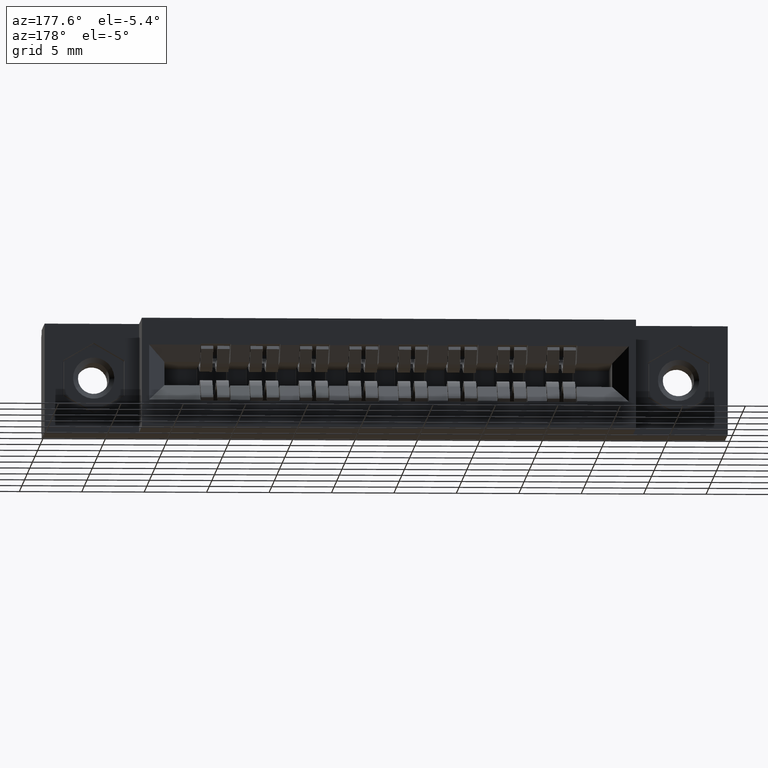
[diagram: clean part render]
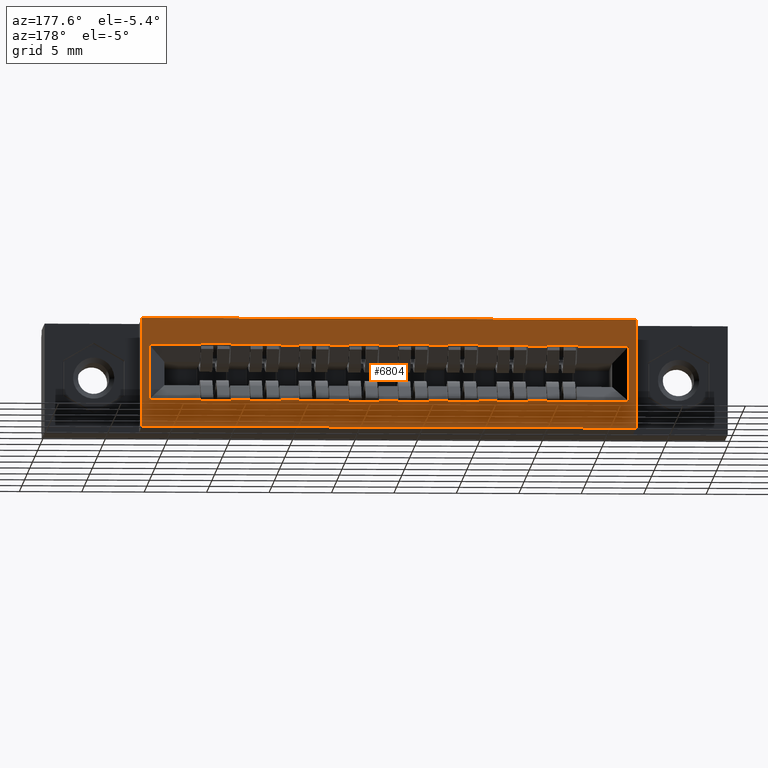
[diagram: same view with one face highlighted and labeled with its STEP entity id]
A machine part, auxiliary view. The second image highlights one B-rep face of the part: STEP entity #6804.
In plain terms, the highlighted planar face has unit normal (0, -1, 0).
Its self-contained STEP definition (entity closure, byte-faithful):
#63 = CARTESIAN_POINT ( 'NONE',  ( 0.8904999999999999583, 0.4600000000000000200, -0.2585000000000003406 ) ) ;
#96 = VECTOR ( 'NONE', #1194, 39.37007874015748143 ) ;
#123 = CARTESIAN_POINT ( 'NONE',  ( 1.263499999999999845, 0.4600000000000000200, -0.08150000000000034994 ) ) ;
#148 = CARTESIAN_POINT ( 'NONE',  ( -3.125808721504124974E-18, 0.4600000000000000200, -0.08450000000000008893 ) ) ;
#190 = EDGE_CURVE ( 'NONE', #6291, #11977, #12354, .T. ) ;
#202 = LINE ( 'NONE', #3156, #9696 ) ;
#214 = DIRECTION ( 'NONE',  ( 1.000000000000000000, -0.0000000000000000000, -0.0000000000000000000 ) ) ;
#221 = CARTESIAN_POINT ( 'NONE',  ( 1.202499999999999902, 0.4600000000000000200, -0.2585000000000003406 ) ) ;
#243 = VERTEX_POINT ( 'NONE', #6377 ) ;
#244 = LINE ( 'NONE', #5393, #2859 ) ;
#282 = LINE ( 'NONE', #5239, #1736 ) ;
#348 = EDGE_CURVE ( 'NONE', #5929, #9593, #12277, .T. ) ;
#391 = CARTESIAN_POINT ( 'NONE',  ( 0.0000000000000000000, 0.4600000000000000200, -0.2585000000000006182 ) ) ;
#393 = LINE ( 'NONE', #10589, #6662 ) ;
#427 = VECTOR ( 'NONE', #968, 39.37007874015748143 ) ;
#471 = CARTESIAN_POINT ( 'NONE',  ( 0.3209999999999997300, 0.4600000000000000200, -0.2585000000000006182 ) ) ;
#549 = LINE ( 'NONE', #8990, #3298 ) ;
#556 = VECTOR ( 'NONE', #12938, 39.37007874015748143 ) ;
#602 = EDGE_CURVE ( 'NONE', #5455, #2452, #10052, .T. ) ;
#619 = VERTEX_POINT ( 'NONE', #3883 ) ;
#638 = ORIENTED_EDGE ( 'NONE', *, *, #10325, .T. ) ;
#660 = CARTESIAN_POINT ( 'NONE',  ( 0.6395000000000000684, 0.4600000000000000200, -0.2585000000000003406 ) ) ;
#661 = VECTOR ( 'NONE', #11314, 39.37007874015748143 ) ;
#687 = EDGE_CURVE ( 'NONE', #9593, #4639, #9928, .T. ) ;
#690 = CARTESIAN_POINT ( 'NONE',  ( 0.7345000000000000417, 0.4600000000000000200, -0.2615000000000003433 ) ) ;
#735 = CARTESIAN_POINT ( 'NONE',  ( 1.419499999999999984, 0.4600000000000000200, -0.08150000000000034994 ) ) ;
#750 = ORIENTED_EDGE ( 'NONE', *, *, #11409, .F. ) ;
#809 = EDGE_LOOP ( 'NONE', ( #11569, #8749, #8347, #11523, #2229, #8973, #9359, #9998, #5409, #12439, #3911, #4657, #1779, #12963, #2264, #3701, #750, #1203, #9809, #13053, #1272, #8388, #9252, #1058, #8412, #10083, #8614, #6664, #12478, #4857, #9215, #9181, #1033, #1877, #5267, #4523, #1987, #13030, #5155, #13001, #4588, #3650, #2720, #6105, #6681, #2728, #11214, #8032, #5540, #833, #638, #7549, #8020, #10721, #10073, #2084, #12647, #12523, #3098, #1995, #3893, #7704, #1223, #8735, #958, #6949, #12126, #6767 ) ) ;
#817 = LINE ( 'NONE', #3767, #427 ) ;
#822 = VERTEX_POINT ( 'NONE', #5887 ) ;
#833 = ORIENTED_EDGE ( 'NONE', *, *, #8587, .T. ) ;
#843 = EDGE_CURVE ( 'NONE', #10914, #7667, #3868, .T. ) ;
#866 = VECTOR ( 'NONE', #7114, 39.37007874015748143 ) ;
#872 = EDGE_CURVE ( 'NONE', #11543, #7248, #8023, .T. ) ;
#875 = CARTESIAN_POINT ( 'NONE',  ( 0.0000000000000000000, 0.4600000000000000200, -0.3430000000000000271 ) ) ;
#914 = EDGE_CURVE ( 'NONE', #11068, #243, #5141, .T. ) ;
#921 = LINE ( 'NONE', #9157, #7046 ) ;
#956 = VERTEX_POINT ( 'NONE', #6142 ) ;
#958 = ORIENTED_EDGE ( 'NONE', *, *, #6737, .F. ) ;
#968 = DIRECTION ( 'NONE',  ( 0.0000000000000000000, 0.0000000000000000000, 1.000000000000000000 ) ) ;
#1023 = EDGE_LOOP ( 'NONE', ( #12810, #10418, #9862, #3476 ) ) ;
#1026 = CARTESIAN_POINT ( 'NONE',  ( 1.514499999999999957, 0.4600000000000000200, -0.2585000000000003406 ) ) ;
#1033 = ORIENTED_EDGE ( 'NONE', *, *, #4630, .F. ) ;
#1056 = VERTEX_POINT ( 'NONE', #5472 ) ;
#1058 = ORIENTED_EDGE ( 'NONE', *, *, #4671, .F. ) ;
#1096 = CARTESIAN_POINT ( 'NONE',  ( 1.263499999999999845, 0.4600000000000000200, -0.2615000000000003433 ) ) ;
#1161 = EDGE_CURVE ( 'NONE', #7675, #7248, #4608, .T. ) ;
#1164 = DIRECTION ( 'NONE',  ( 0.0000000000000000000, 0.0000000000000000000, 1.000000000000000000 ) ) ;
#1194 = DIRECTION ( 'NONE',  ( 1.000000000000000000, 0.0000000000000000000, 0.0000000000000000000 ) ) ;
#1203 = ORIENTED_EDGE ( 'NONE', *, *, #13099, .T. ) ;
#1208 = CARTESIAN_POINT ( 'NONE',  ( 1.575500000000000123, 0.4600000000000000200, -0.08150000000000034994 ) ) ;
#1223 = ORIENTED_EDGE ( 'NONE', *, *, #2963, .T. ) ;
#1226 = CARTESIAN_POINT ( 'NONE',  ( 0.7954999999999999849, 0.4600000000000000200, -0.2585000000000003406 ) ) ;
#1272 = ORIENTED_EDGE ( 'NONE', *, *, #3557, .F. ) ;
#1429 = DIRECTION ( 'NONE',  ( -0.0000000000000000000, -0.0000000000000000000, 1.000000000000000000 ) ) ;
#1446 = CARTESIAN_POINT ( 'NONE',  ( 1.856000000000000094, 0.4600000000000000200, -0.3429999999999996385 ) ) ;
#1457 = VERTEX_POINT ( 'NONE', #2941 ) ;
#1481 = VERTEX_POINT ( 'NONE', #63 ) ;
#1511 = VERTEX_POINT ( 'NONE', #3000 ) ;
#1530 = CARTESIAN_POINT ( 'NONE',  ( -3.125808721504124974E-18, 0.4600000000000000200, -0.08450000000000008893 ) ) ;
#1584 = DIRECTION ( 'NONE',  ( -0.0000000000000000000, -0.0000000000000000000, 1.000000000000000000 ) ) ;
#1682 = DIRECTION ( 'NONE',  ( -1.000000000000000000, -0.0000000000000000000, -0.0000000000000000000 ) ) ;
#1695 = CARTESIAN_POINT ( 'NONE',  ( -3.125808721504124974E-18, 0.4600000000000000200, -0.08450000000000008893 ) ) ;
#1725 = VERTEX_POINT ( 'NONE', #8824 ) ;
#1736 = VECTOR ( 'NONE', #7308, 39.37007874015748143 ) ;
#1778 = CARTESIAN_POINT ( 'NONE',  ( 0.7345000000000000417, 0.4600000000000000200, -0.08450000000000035261 ) ) ;
#1779 = ORIENTED_EDGE ( 'NONE', *, *, #8707, .F. ) ;
#1877 = ORIENTED_EDGE ( 'NONE', *, *, #5342, .T. ) ;
#1892 = CARTESIAN_POINT ( 'NONE',  ( -3.125808721504124974E-18, 0.4600000000000000200, -0.08450000000000008893 ) ) ;
#1894 = CARTESIAN_POINT ( 'NONE',  ( 0.8904999999999999583, 0.4600000000000000200, -0.2615000000000003433 ) ) ;
#1917 = VERTEX_POINT ( 'NONE', #1918 ) ;
#1918 = CARTESIAN_POINT ( 'NONE',  ( 0.9514999999999999014, 0.4600000000000000200, -0.08150000000000034994 ) ) ;
#1964 = EDGE_CURVE ( 'NONE', #2624, #1725, #5387, .T. ) ;
#1972 = CARTESIAN_POINT ( 'NONE',  ( 1.107499999999999929, 0.4600000000000000200, -0.08450000000000035261 ) ) ;
#1987 = ORIENTED_EDGE ( 'NONE', *, *, #7155, .F. ) ;
#1992 = VECTOR ( 'NONE', #11374, 39.37007874015748143 ) ;
#1995 = ORIENTED_EDGE ( 'NONE', *, *, #6654, .T. ) ;
#2073 = VECTOR ( 'NONE', #7381, 39.37007874015748143 ) ;
#2080 = DIRECTION ( 'NONE',  ( 1.000000000000000000, 0.0000000000000000000, 0.0000000000000000000 ) ) ;
#2084 = ORIENTED_EDGE ( 'NONE', *, *, #5495, .T. ) ;
#2179 = VERTEX_POINT ( 'NONE', #690 ) ;
#2180 = VECTOR ( 'NONE', #11747, 39.37007874015748143 ) ;
#2191 = VECTOR ( 'NONE', #11027, 39.37007874015748143 ) ;
#2194 = VECTOR ( 'NONE', #8520, 39.37007874015748143 ) ;
#2226 = CARTESIAN_POINT ( 'NONE',  ( 1.419499999999999984, 0.4600000000000000200, -0.08450000000000035261 ) ) ;
#2229 = ORIENTED_EDGE ( 'NONE', *, *, #12231, .T. ) ;
#2245 = CARTESIAN_POINT ( 'NONE',  ( 0.0000000000000000000, 0.4600000000000000200, -0.2585000000000006182 ) ) ;
#2264 = ORIENTED_EDGE ( 'NONE', *, *, #3574, .T. ) ;
#2323 = DIRECTION ( 'NONE',  ( 1.000000000000000000, -0.0000000000000000000, -0.0000000000000000000 ) ) ;
#2378 = VERTEX_POINT ( 'NONE', #221 ) ;
#2400 = VERTEX_POINT ( 'NONE', #5179 ) ;
#2403 = EDGE_CURVE ( 'NONE', #1056, #9565, #5444, .T. ) ;
#2410 = CARTESIAN_POINT ( 'NONE',  ( 0.9514999999999999014, 0.4600000000000000200, -0.2585000000000003406 ) ) ;
#2434 = DIRECTION ( 'NONE',  ( 1.000000000000000000, -0.0000000000000000000, -0.0000000000000000000 ) ) ;
#2452 = VERTEX_POINT ( 'NONE', #6308 ) ;
#2476 = VERTEX_POINT ( 'NONE', #1226 ) ;
#2482 = EDGE_CURVE ( 'NONE', #9487, #2179, #3239, .T. ) ;
#2489 = CARTESIAN_POINT ( 'NONE',  ( 1.263499999999999845, 0.4600000000000000200, -0.2585000000000003406 ) ) ;
#2523 = VERTEX_POINT ( 'NONE', #11867 ) ;
#2552 = EDGE_CURVE ( 'NONE', #9299, #12240, #12742, .T. ) ;
#2565 = CARTESIAN_POINT ( 'NONE',  ( -3.125808721504124974E-18, 0.4600000000000000200, -0.08450000000000008893 ) ) ;
#2624 = VERTEX_POINT ( 'NONE', #471 ) ;
#2657 = CARTESIAN_POINT ( 'NONE',  ( 1.419499999999999984, 0.4600000000000000200, -0.2585000000000003406 ) ) ;
#2671 = LINE ( 'NONE', #3593, #10552 ) ;
#2679 = DIRECTION ( 'NONE',  ( -1.000000000000000000, 0.0000000000000000000, -1.209210337138926833E-17 ) ) ;
#2687 = CARTESIAN_POINT ( 'NONE',  ( 1.263499999999999845, 0.4600000000000000200, -0.08450000000000035261 ) ) ;
#2705 = DIRECTION ( 'NONE',  ( -0.0000000000000000000, -0.0000000000000000000, 1.000000000000000000 ) ) ;
#2720 = ORIENTED_EDGE ( 'NONE', *, *, #6983, .T. ) ;
#2728 = ORIENTED_EDGE ( 'NONE', *, *, #2482, .T. ) ;
#2804 = DIRECTION ( 'NONE',  ( 1.000000000000000000, -0.0000000000000000000, -0.0000000000000000000 ) ) ;
#2837 = CARTESIAN_POINT ( 'NONE',  ( 0.7954999999999999849, 0.4600000000000000200, -0.2615000000000003433 ) ) ;
#2859 = VECTOR ( 'NONE', #4261, 39.37007874015748143 ) ;
#2941 = CARTESIAN_POINT ( 'NONE',  ( 1.856000000000000094, 0.4600000000000000200, 0.0000000000000000000 ) ) ;
#2963 = EDGE_CURVE ( 'NONE', #7331, #5942, #4736, .T. ) ;
#2965 = LINE ( 'NONE', #12079, #5420 ) ;
#2971 = LINE ( 'NONE', #7054, #6028 ) ;
#2998 = VECTOR ( 'NONE', #4482, 39.37007874015748143 ) ;
#3000 = CARTESIAN_POINT ( 'NONE',  ( 0.2979999999999999871, 0.4600000000000000200, 0.0000000000000000000 ) ) ;
#3009 = DIRECTION ( 'NONE',  ( 0.0000000000000000000, 0.0000000000000000000, 1.000000000000000000 ) ) ;
#3087 = LINE ( 'NONE', #11247, #4556 ) ;
#3094 = VERTEX_POINT ( 'NONE', #8076 ) ;
#3098 = ORIENTED_EDGE ( 'NONE', *, *, #3727, .T. ) ;
#3106 = VECTOR ( 'NONE', #10347, 39.37007874015748143 ) ;
#3109 = EDGE_CURVE ( 'NONE', #8008, #12777, #921, .T. ) ;
#3156 = CARTESIAN_POINT ( 'NONE',  ( 0.7345000000000000417, 0.4600000000000000200, -0.08450000000000035261 ) ) ;
#3167 = CARTESIAN_POINT ( 'NONE',  ( 1.419499999999999984, 0.4600000000000000200, -0.2615000000000003433 ) ) ;
#3169 = DIRECTION ( 'NONE',  ( -1.000000000000000000, 0.0000000000000000000, -1.209210337138926833E-17 ) ) ;
#3182 = DIRECTION ( 'NONE',  ( 0.0000000000000000000, 0.0000000000000000000, 1.000000000000000000 ) ) ;
#3239 = LINE ( 'NONE', #12608, #2073 ) ;
#3243 = CARTESIAN_POINT ( 'NONE',  ( 0.5785000000000000142, 0.4600000000000000200, -0.08150000000000034994 ) ) ;
#3248 = CARTESIAN_POINT ( 'NONE',  ( 0.7954999999999999849, 0.4600000000000000200, -0.08450000000000035261 ) ) ;
#3274 = VECTOR ( 'NONE', #7845, 39.37007874015748143 ) ;
#3298 = VECTOR ( 'NONE', #6912, 39.37007874015748143 ) ;
#3334 = CARTESIAN_POINT ( 'NONE',  ( 1.670500000000000096, 0.4600000000000000200, -0.2615000000000003433 ) ) ;
#3359 = LINE ( 'NONE', #7234, #661 ) ;
#3419 = VECTOR ( 'NONE', #6378, 39.37007874015748143 ) ;
#3444 = CARTESIAN_POINT ( 'NONE',  ( 1.107499999999999929, 0.4600000000000000200, -0.2585000000000003406 ) ) ;
#3476 = ORIENTED_EDGE ( 'NONE', *, *, #13028, .F. ) ;
#3493 = DIRECTION ( 'NONE',  ( 0.0000000000000000000, 0.0000000000000000000, 1.000000000000000000 ) ) ;
#3556 = VECTOR ( 'NONE', #12429, 39.37007874015748143 ) ;
#3557 = EDGE_CURVE ( 'NONE', #11930, #7675, #10152, .T. ) ;
#3574 = EDGE_CURVE ( 'NONE', #7188, #12216, #7995, .T. ) ;
#3593 = CARTESIAN_POINT ( 'NONE',  ( 1.514499999999999957, 0.4600000000000000200, -0.2585000000000003406 ) ) ;
#3600 = EDGE_CURVE ( 'NONE', #8686, #9565, #2971, .T. ) ;
#3631 = EDGE_CURVE ( 'NONE', #7067, #7331, #10273, .T. ) ;
#3650 = ORIENTED_EDGE ( 'NONE', *, *, #6713, .T. ) ;
#3664 = VECTOR ( 'NONE', #1429, 39.37007874015748143 ) ;
#3669 = VECTOR ( 'NONE', #13003, 39.37007874015748143 ) ;
#3674 = LINE ( 'NONE', #5620, #9234 ) ;
#3691 = LINE ( 'NONE', #8869, #3937 ) ;
#3692 = EDGE_CURVE ( 'NONE', #2523, #3755, #11331, .T. ) ;
#3701 = ORIENTED_EDGE ( 'NONE', *, *, #10390, .F. ) ;
#3714 = FACE_BOUND ( 'NONE', #809, .T. ) ;
#3727 = EDGE_CURVE ( 'NONE', #7667, #2378, #4305, .T. ) ;
#3749 = VERTEX_POINT ( 'NONE', #5503 ) ;
#3755 = VERTEX_POINT ( 'NONE', #11529 ) ;
#3767 = CARTESIAN_POINT ( 'NONE',  ( 0.9514999999999999014, 0.4600000000000000200, -0.08450000000000035261 ) ) ;
#3780 = VERTEX_POINT ( 'NONE', #5631 ) ;
#3781 = CARTESIAN_POINT ( 'NONE',  ( 0.6395000000000000684, 0.4600000000000000200, -0.08450000000000035261 ) ) ;
#3797 = VECTOR ( 'NONE', #1682, 39.37007874015748143 ) ;
#3816 = CARTESIAN_POINT ( 'NONE',  ( 1.670500000000000096, 0.4600000000000000200, -0.08450000000000035261 ) ) ;
#3826 = DIRECTION ( 'NONE',  ( 1.000000000000000000, -0.0000000000000000000, -0.0000000000000000000 ) ) ;
#3828 = CARTESIAN_POINT ( 'NONE',  ( 1.856000000000000094, 0.4600000000000000200, 0.0000000000000000000 ) ) ;
#3868 = LINE ( 'NONE', #4948, #8747 ) ;
#3883 = CARTESIAN_POINT ( 'NONE',  ( 0.4834999999999999853, 0.4600000000000000200, -0.08450000000000035261 ) ) ;
#3889 = VECTOR ( 'NONE', #9317, 39.37007874015748143 ) ;
#3893 = ORIENTED_EDGE ( 'NONE', *, *, #7975, .F. ) ;
#3908 = DIRECTION ( 'NONE',  ( 1.000000000000000000, -0.0000000000000000000, -0.0000000000000000000 ) ) ;
#3911 = ORIENTED_EDGE ( 'NONE', *, *, #9741, .T. ) ;
#3937 = VECTOR ( 'NONE', #3826, 39.37007874015748143 ) ;
#3946 = VECTOR ( 'NONE', #5087, 39.37007874015748143 ) ;
#3970 = CARTESIAN_POINT ( 'NONE',  ( 0.4834999999999999853, 0.4600000000000000200, -0.2585000000000003406 ) ) ;
#3981 = CARTESIAN_POINT ( 'NONE',  ( 1.358499999999999819, 0.4600000000000000200, -0.08450000000000035261 ) ) ;
#4012 = LINE ( 'NONE', #9174, #7119 ) ;
#4032 = CARTESIAN_POINT ( 'NONE',  ( 0.8904999999999999583, 0.4600000000000000200, -0.08450000000000035261 ) ) ;
#4072 = DIRECTION ( 'NONE',  ( 0.0000000000000000000, 0.0000000000000000000, 1.000000000000000000 ) ) ;
#4155 = VECTOR ( 'NONE', #6759, 39.37007874015748143 ) ;
#4163 = LINE ( 'NONE', #3970, #11427 ) ;
#4170 = EDGE_CURVE ( 'NONE', #12305, #9288, #3359, .T. ) ;
#4226 = DIRECTION ( 'NONE',  ( -0.0000000000000000000, -0.0000000000000000000, 1.000000000000000000 ) ) ;
#4261 = DIRECTION ( 'NONE',  ( -0.0000000000000000000, -0.0000000000000000000, 1.000000000000000000 ) ) ;
#4266 = CARTESIAN_POINT ( 'NONE',  ( 0.5785000000000000142, 0.4600000000000000200, -0.2585000000000003406 ) ) ;
#4305 = LINE ( 'NONE', #8396, #3664 ) ;
#4330 = LINE ( 'NONE', #10370, #96 ) ;
#4451 = DIRECTION ( 'NONE',  ( 0.0000000000000000000, 0.0000000000000000000, 1.000000000000000000 ) ) ;
#4471 = LINE ( 'NONE', #10374, #10916 ) ;
#4479 = DIRECTION ( 'NONE',  ( -0.0000000000000000000, -0.0000000000000000000, 1.000000000000000000 ) ) ;
#4482 = DIRECTION ( 'NONE',  ( 1.000000000000000000, 0.0000000000000000000, 0.0000000000000000000 ) ) ;
#4504 = CARTESIAN_POINT ( 'NONE',  ( 1.670500000000000096, 0.4600000000000000200, -0.08450000000000035261 ) ) ;
#4513 = DIRECTION ( 'NONE',  ( 1.000000000000000000, -0.0000000000000000000, -0.0000000000000000000 ) ) ;
#4523 = ORIENTED_EDGE ( 'NONE', *, *, #3600, .F. ) ;
#4556 = VECTOR ( 'NONE', #5152, 39.37007874015748143 ) ;
#4583 = EDGE_CURVE ( 'NONE', #6154, #2476, #5584, .T. ) ;
#4588 = ORIENTED_EDGE ( 'NONE', *, *, #5564, .F. ) ;
#4600 = LINE ( 'NONE', #2657, #5870 ) ;
#4608 = LINE ( 'NONE', #4983, #866 ) ;
#4611 = VECTOR ( 'NONE', #8634, 39.37007874015748143 ) ;
#4630 = EDGE_CURVE ( 'NONE', #822, #2523, #10017, .T. ) ;
#4638 = VERTEX_POINT ( 'NONE', #1778 ) ;
#4639 = VERTEX_POINT ( 'NONE', #5926 ) ;
#4657 = ORIENTED_EDGE ( 'NONE', *, *, #11525, .F. ) ;
#4662 = FACE_OUTER_BOUND ( 'NONE', #1023, .T. ) ;
#4671 = EDGE_CURVE ( 'NONE', #1917, #3780, #11888, .T. ) ;
#4736 = LINE ( 'NONE', #8826, #4902 ) ;
#4765 = CARTESIAN_POINT ( 'NONE',  ( 1.514499999999999957, 0.4600000000000000200, -0.08150000000000034994 ) ) ;
#4789 = VERTEX_POINT ( 'NONE', #12149 ) ;
#4823 = CARTESIAN_POINT ( 'NONE',  ( 0.0000000000000000000, 0.4600000000000000200, 0.0000000000000000000 ) ) ;
#4847 = LINE ( 'NONE', #2565, #3669 ) ;
#4851 = LINE ( 'NONE', #3828, #9709 ) ;
#4857 = ORIENTED_EDGE ( 'NONE', *, *, #13194, .T. ) ;
#4863 = CARTESIAN_POINT ( 'NONE',  ( 0.9514999999999999014, 0.4600000000000000200, -0.08150000000000034994 ) ) ;
#4871 = CARTESIAN_POINT ( 'NONE',  ( 1.107499999999999929, 0.4600000000000000200, -0.2585000000000003406 ) ) ;
#4884 = CARTESIAN_POINT ( 'NONE',  ( 1.202499999999999902, 0.4600000000000000200, -0.2615000000000003433 ) ) ;
#4885 = DIRECTION ( 'NONE',  ( -1.000000000000000000, 0.0000000000000000000, -1.209210337138926833E-17 ) ) ;
#4902 = VECTOR ( 'NONE', #5675, 39.37007874015748143 ) ;
#4948 = CARTESIAN_POINT ( 'NONE',  ( 1.107499999999999929, 0.4600000000000000200, -0.2615000000000003433 ) ) ;
#4983 = CARTESIAN_POINT ( 'NONE',  ( 1.107499999999999929, 0.4600000000000000200, -0.08150000000000034994 ) ) ;
#5005 = DIRECTION ( 'NONE',  ( 1.000000000000000000, 0.0000000000000000000, 0.0000000000000000000 ) ) ;
#5039 = EDGE_CURVE ( 'NONE', #2179, #8309, #5767, .T. ) ;
#5042 = VERTEX_POINT ( 'NONE', #7707 ) ;
#5064 = DIRECTION ( 'NONE',  ( -0.0000000000000000000, -0.0000000000000000000, 1.000000000000000000 ) ) ;
#5079 = CARTESIAN_POINT ( 'NONE',  ( 0.0000000000000000000, 0.4600000000000000200, -0.2585000000000006182 ) ) ;
#5087 = DIRECTION ( 'NONE',  ( 1.000000000000000000, -0.0000000000000000000, -0.0000000000000000000 ) ) ;
#5108 = EDGE_CURVE ( 'NONE', #12305, #7393, #4847, .T. ) ;
#5120 = LINE ( 'NONE', #12964, #3419 ) ;
#5141 = LINE ( 'NONE', #5079, #8324 ) ;
#5152 = DIRECTION ( 'NONE',  ( -1.000000000000000000, 0.0000000000000000000, -1.209210337138926833E-17 ) ) ;
#5155 = ORIENTED_EDGE ( 'NONE', *, *, #8274, .T. ) ;
#5179 = CARTESIAN_POINT ( 'NONE',  ( 1.514499999999999957, 0.4600000000000000200, -0.2615000000000003433 ) ) ;
#5203 = CARTESIAN_POINT ( 'NONE',  ( 1.575500000000000123, 0.4600000000000000200, -0.08150000000000034994 ) ) ;
#5222 = CARTESIAN_POINT ( 'NONE',  ( 0.7954999999999999849, 0.4600000000000000200, -0.2585000000000003406 ) ) ;
#5239 = CARTESIAN_POINT ( 'NONE',  ( 0.0000000000000000000, 0.4600000000000000200, -0.2585000000000006182 ) ) ;
#5267 = ORIENTED_EDGE ( 'NONE', *, *, #2403, .T. ) ;
#5294 = LINE ( 'NONE', #9394, #6942 ) ;
#5302 = CARTESIAN_POINT ( 'NONE',  ( 0.5785000000000000142, 0.4600000000000000200, -0.08450000000000035261 ) ) ;
#5340 = CARTESIAN_POINT ( 'NONE',  ( 0.7954999999999999849, 0.4600000000000000200, -0.08450000000000035261 ) ) ;
#5342 = EDGE_CURVE ( 'NONE', #822, #1056, #7371, .T. ) ;
#5378 = DIRECTION ( 'NONE',  ( 1.000000000000000000, 0.0000000000000000000, 0.0000000000000000000 ) ) ;
#5387 = LINE ( 'NONE', #6251, #3556 ) ;
#5393 = CARTESIAN_POINT ( 'NONE',  ( 0.8904999999999999583, 0.4600000000000000200, -0.2585000000000003406 ) ) ;
#5409 = ORIENTED_EDGE ( 'NONE', *, *, #4170, .F. ) ;
#5415 = CARTESIAN_POINT ( 'NONE',  ( 1.046499999999999986, 0.4600000000000000200, -0.2615000000000003433 ) ) ;
#5420 = VECTOR ( 'NONE', #2705, 39.37007874015748143 ) ;
#5432 = VECTOR ( 'NONE', #2323, 39.37007874015748143 ) ;
#5444 = LINE ( 'NONE', #5302, #10208 ) ;
#5455 = VERTEX_POINT ( 'NONE', #1446 ) ;
#5472 = CARTESIAN_POINT ( 'NONE',  ( 0.5785000000000000142, 0.4600000000000000200, -0.08450000000000035261 ) ) ;
#5483 = LINE ( 'NONE', #391, #2998 ) ;
#5495 = EDGE_CURVE ( 'NONE', #5042, #8199, #7603, .T. ) ;
#5503 = CARTESIAN_POINT ( 'NONE',  ( 0.9514999999999999014, 0.4600000000000000200, -0.2585000000000003406 ) ) ;
#5540 = ORIENTED_EDGE ( 'NONE', *, *, #4583, .F. ) ;
#5564 = EDGE_CURVE ( 'NONE', #8895, #1725, #4163, .T. ) ;
#5584 = LINE ( 'NONE', #5222, #3889 ) ;
#5593 = VECTOR ( 'NONE', #8125, 39.37007874015748143 ) ;
#5606 = LINE ( 'NONE', #4823, #4611 ) ;
#5620 = CARTESIAN_POINT ( 'NONE',  ( 1.046499999999999986, 0.4600000000000000200, -0.08450000000000035261 ) ) ;
#5631 = CARTESIAN_POINT ( 'NONE',  ( 1.046499999999999986, 0.4600000000000000200, -0.08150000000000034994 ) ) ;
#5675 = DIRECTION ( 'NONE',  ( -0.0000000000000000000, -0.0000000000000000000, 1.000000000000000000 ) ) ;
#5724 = PLANE ( 'NONE',  #6273 ) ;
#5767 = LINE ( 'NONE', #7782, #3274 ) ;
#5770 = CARTESIAN_POINT ( 'NONE',  ( 1.358499999999999819, 0.4600000000000000200, -0.2615000000000003433 ) ) ;
#5771 = LINE ( 'NONE', #1695, #12502 ) ;
#5804 = VECTOR ( 'NONE', #8328, 39.37007874015748143 ) ;
#5870 = VECTOR ( 'NONE', #1584, 39.37007874015748143 ) ;
#5878 = CARTESIAN_POINT ( 'NONE',  ( 1.575500000000000123, 0.4600000000000000200, -0.2615000000000003433 ) ) ;
#5886 = CARTESIAN_POINT ( 'NONE',  ( 1.419499999999999984, 0.4600000000000000200, -0.2615000000000003433 ) ) ;
#5887 = CARTESIAN_POINT ( 'NONE',  ( 0.6395000000000000684, 0.4600000000000000200, -0.08450000000000035261 ) ) ;
#5926 = CARTESIAN_POINT ( 'NONE',  ( 1.670500000000000096, 0.4600000000000000200, -0.08150000000000034994 ) ) ;
#5929 = VERTEX_POINT ( 'NONE', #7629 ) ;
#5942 = VERTEX_POINT ( 'NONE', #6758 ) ;
#5947 = CARTESIAN_POINT ( 'NONE',  ( -3.125808721504124974E-18, 0.4600000000000000200, -0.08450000000000008893 ) ) ;
#5988 = CARTESIAN_POINT ( 'NONE',  ( 1.107499999999999929, 0.4600000000000000200, -0.08450000000000035261 ) ) ;
#6028 = VECTOR ( 'NONE', #3908, 39.37007874015748143 ) ;
#6042 = CARTESIAN_POINT ( 'NONE',  ( 1.575500000000000123, 0.4600000000000000200, -0.08450000000000035261 ) ) ;
#6092 = LINE ( 'NONE', #6835, #7132 ) ;
#6097 = LINE ( 'NONE', #1208, #1992 ) ;
#6105 = ORIENTED_EDGE ( 'NONE', *, *, #3109, .T. ) ;
#6128 = VERTEX_POINT ( 'NONE', #10046 ) ;
#6142 = CARTESIAN_POINT ( 'NONE',  ( 0.3209999999999997300, 0.4600000000000000200, -0.08450000000000008893 ) ) ;
#6154 = VERTEX_POINT ( 'NONE', #7960 ) ;
#6213 = VECTOR ( 'NONE', #11390, 39.37007874015748143 ) ;
#6238 = VECTOR ( 'NONE', #4513, 39.37007874015748143 ) ;
#6241 = CARTESIAN_POINT ( 'NONE',  ( 0.8904999999999999583, 0.4600000000000000200, -0.08150000000000034994 ) ) ;
#6251 = CARTESIAN_POINT ( 'NONE',  ( 0.0000000000000000000, 0.4600000000000000200, -0.2585000000000006182 ) ) ;
#6267 = VECTOR ( 'NONE', #5064, 39.37007874015748143 ) ;
#6273 = AXIS2_PLACEMENT_3D ( 'NONE', #7541, #8813, #11822 ) ;
#6291 = VERTEX_POINT ( 'NONE', #5340 ) ;
#6308 = CARTESIAN_POINT ( 'NONE',  ( 0.2979999999999998206, 0.4600000000000000200, -0.3430000000000000271 ) ) ;
#6377 = CARTESIAN_POINT ( 'NONE',  ( 1.575500000000000123, 0.4600000000000000200, -0.2585000000000003406 ) ) ;
#6378 = DIRECTION ( 'NONE',  ( -0.0000000000000000000, -0.0000000000000000000, 1.000000000000000000 ) ) ;
#6381 = EDGE_CURVE ( 'NONE', #1511, #1457, #5606, .T. ) ;
#6411 = LINE ( 'NONE', #2410, #7752 ) ;
#6429 = VECTOR ( 'NONE', #7526, 39.37007874015748143 ) ;
#6548 = LINE ( 'NONE', #8446, #10554 ) ;
#6654 = EDGE_CURVE ( 'NONE', #2378, #12601, #4330, .T. ) ;
#6662 = VECTOR ( 'NONE', #8573, 39.37007874015748143 ) ;
#6664 = ORIENTED_EDGE ( 'NONE', *, *, #12383, .F. ) ;
#6681 = ORIENTED_EDGE ( 'NONE', *, *, #9220, .F. ) ;
#6713 = EDGE_CURVE ( 'NONE', #8895, #9700, #11495, .T. ) ;
#6737 = EDGE_CURVE ( 'NONE', #8723, #3094, #4600, .T. ) ;
#6758 = CARTESIAN_POINT ( 'NONE',  ( 1.358499999999999819, 0.4600000000000000200, -0.2585000000000003406 ) ) ;
#6759 = DIRECTION ( 'NONE',  ( 0.0000000000000000000, 0.0000000000000000000, 1.000000000000000000 ) ) ;
#6767 = ORIENTED_EDGE ( 'NONE', *, *, #914, .T. ) ;
#6778 = CARTESIAN_POINT ( 'NONE',  ( 1.358499999999999819, 0.4600000000000000200, -0.08450000000000035261 ) ) ;
#6804 = ADVANCED_FACE ( 'NONE', ( #4662, #3714 ), #5724, .F. ) ;
#6835 = CARTESIAN_POINT ( 'NONE',  ( 1.514499999999999957, 0.4600000000000000200, -0.08450000000000035261 ) ) ;
#6912 = DIRECTION ( 'NONE',  ( 0.0000000000000000000, 0.0000000000000000000, 1.000000000000000000 ) ) ;
#6917 = VECTOR ( 'NONE', #2804, 39.37007874015748143 ) ;
#6928 = VERTEX_POINT ( 'NONE', #11217 ) ;
#6942 = VECTOR ( 'NONE', #8183, 39.37007874015748143 ) ;
#6949 = ORIENTED_EDGE ( 'NONE', *, *, #13196, .T. ) ;
#6970 = DIRECTION ( 'NONE',  ( 0.0000000000000000000, 0.0000000000000000000, 1.000000000000000000 ) ) ;
#6983 = EDGE_CURVE ( 'NONE', #9700, #8008, #5120, .T. ) ;
#6984 = LINE ( 'NONE', #2837, #10085 ) ;
#7020 = EDGE_CURVE ( 'NONE', #8309, #2476, #9411, .T. ) ;
#7046 = VECTOR ( 'NONE', #5005, 39.37007874015748143 ) ;
#7054 = CARTESIAN_POINT ( 'NONE',  ( 0.4834999999999999853, 0.4600000000000000200, -0.08150000000000034994 ) ) ;
#7067 = VERTEX_POINT ( 'NONE', #12296 ) ;
#7112 = LINE ( 'NONE', #12401, #11197 ) ;
#7114 = DIRECTION ( 'NONE',  ( 1.000000000000000000, -0.0000000000000000000, -0.0000000000000000000 ) ) ;
#7119 = VECTOR ( 'NONE', #2080, 39.37007874015748143 ) ;
#7132 = VECTOR ( 'NONE', #4072, 39.37007874015748143 ) ;
#7155 = EDGE_CURVE ( 'NONE', #619, #8686, #12616, .T. ) ;
#7188 = VERTEX_POINT ( 'NONE', #6778 ) ;
#7204 = CARTESIAN_POINT ( 'NONE',  ( 0.7954999999999999849, 0.4600000000000000200, -0.08150000000000034994 ) ) ;
#7234 = CARTESIAN_POINT ( 'NONE',  ( 1.575500000000000123, 0.4600000000000000200, -0.08450000000000035261 ) ) ;
#7248 = VERTEX_POINT ( 'NONE', #8730 ) ;
#7271 = DIRECTION ( 'NONE',  ( 1.000000000000000000, -0.0000000000000000000, -0.0000000000000000000 ) ) ;
#7305 = VECTOR ( 'NONE', #2434, 39.37007874015748143 ) ;
#7308 = DIRECTION ( 'NONE',  ( 1.000000000000000000, 0.0000000000000000000, 0.0000000000000000000 ) ) ;
#7311 = EDGE_CURVE ( 'NONE', #6128, #1917, #817, .T. ) ;
#7321 = LINE ( 'NONE', #12353, #12064 ) ;
#7331 = VERTEX_POINT ( 'NONE', #5770 ) ;
#7341 = CARTESIAN_POINT ( 'NONE',  ( 0.4834999999999999853, 0.4600000000000000200, -0.2615000000000003433 ) ) ;
#7371 = LINE ( 'NONE', #148, #2194 ) ;
#7381 = DIRECTION ( 'NONE',  ( 1.000000000000000000, -0.0000000000000000000, -0.0000000000000000000 ) ) ;
#7393 = VERTEX_POINT ( 'NONE', #9131 ) ;
#7456 = CARTESIAN_POINT ( 'NONE',  ( 0.7345000000000000417, 0.4600000000000000200, -0.2585000000000003406 ) ) ;
#7460 = EDGE_CURVE ( 'NONE', #1481, #3749, #5483, .T. ) ;
#7526 = DIRECTION ( 'NONE',  ( -0.0000000000000000000, -0.0000000000000000000, 1.000000000000000000 ) ) ;
#7541 = CARTESIAN_POINT ( 'NONE',  ( 0.0000000000000000000, 0.4600000000000000200, -0.3430000000000000271 ) ) ;
#7549 = ORIENTED_EDGE ( 'NONE', *, *, #7460, .T. ) ;
#7569 = VERTEX_POINT ( 'NONE', #5415 ) ;
#7603 = LINE ( 'NONE', #12761, #9309 ) ;
#7629 = CARTESIAN_POINT ( 'NONE',  ( 1.833000000000000185, 0.4600000000000000200, -0.08450000000000006117 ) ) ;
#7667 = VERTEX_POINT ( 'NONE', #4884 ) ;
#7675 = VERTEX_POINT ( 'NONE', #10970 ) ;
#7704 = ORIENTED_EDGE ( 'NONE', *, *, #3631, .T. ) ;
#7707 = CARTESIAN_POINT ( 'NONE',  ( 1.046499999999999986, 0.4600000000000000200, -0.2585000000000003406 ) ) ;
#7752 = VECTOR ( 'NONE', #11650, 39.37007874015748143 ) ;
#7759 = VECTOR ( 'NONE', #2679, 39.37007874015748143 ) ;
#7782 = CARTESIAN_POINT ( 'NONE',  ( 0.7345000000000000417, 0.4600000000000000200, -0.2585000000000003406 ) ) ;
#7845 = DIRECTION ( 'NONE',  ( -0.0000000000000000000, -0.0000000000000000000, 1.000000000000000000 ) ) ;
#7905 = VERTEX_POINT ( 'NONE', #9372 ) ;
#7960 = CARTESIAN_POINT ( 'NONE',  ( 0.7954999999999999849, 0.4600000000000000200, -0.2615000000000003433 ) ) ;
#7975 = EDGE_CURVE ( 'NONE', #7067, #12601, #4471, .T. ) ;
#7982 = DIRECTION ( 'NONE',  ( -1.000000000000000000, 0.0000000000000000000, -1.209210337138926833E-17 ) ) ;
#7995 = LINE ( 'NONE', #3981, #5593 ) ;
#8004 = LINE ( 'NONE', #12094, #6267 ) ;
#8008 = VERTEX_POINT ( 'NONE', #4266 ) ;
#8020 = ORIENTED_EDGE ( 'NONE', *, *, #13023, .F. ) ;
#8023 = LINE ( 'NONE', #9166, #11309 ) ;
#8032 = ORIENTED_EDGE ( 'NONE', *, *, #7020, .T. ) ;
#8076 = CARTESIAN_POINT ( 'NONE',  ( 1.419499999999999984, 0.4600000000000000200, -0.2585000000000003406 ) ) ;
#8125 = DIRECTION ( 'NONE',  ( 0.0000000000000000000, 0.0000000000000000000, 1.000000000000000000 ) ) ;
#8183 = DIRECTION ( 'NONE',  ( -1.000000000000000000, 0.0000000000000000000, -1.209210337138926833E-17 ) ) ;
#8199 = VERTEX_POINT ( 'NONE', #4871 ) ;
#8274 = EDGE_CURVE ( 'NONE', #956, #2624, #11147, .T. ) ;
#8309 = VERTEX_POINT ( 'NONE', #7456 ) ;
#8324 = VECTOR ( 'NONE', #10108, 39.37007874015748143 ) ;
#8328 = DIRECTION ( 'NONE',  ( 1.000000000000000000, -0.0000000000000000000, -0.0000000000000000000 ) ) ;
#8347 = ORIENTED_EDGE ( 'NONE', *, *, #2552, .T. ) ;
#8388 = ORIENTED_EDGE ( 'NONE', *, *, #11054, .T. ) ;
#8393 = EDGE_CURVE ( 'NONE', #10914, #8199, #10286, .T. ) ;
#8396 = CARTESIAN_POINT ( 'NONE',  ( 1.202499999999999902, 0.4600000000000000200, -0.2585000000000003406 ) ) ;
#8412 = ORIENTED_EDGE ( 'NONE', *, *, #7311, .F. ) ;
#8445 = EDGE_CURVE ( 'NONE', #10195, #9299, #11680, .T. ) ;
#8446 = CARTESIAN_POINT ( 'NONE',  ( 0.2979999999999999871, 0.4600000000000000200, 0.0000000000000000000 ) ) ;
#8520 = DIRECTION ( 'NONE',  ( -1.000000000000000000, 0.0000000000000000000, -1.209210337138926833E-17 ) ) ;
#8573 = DIRECTION ( 'NONE',  ( -0.0000000000000000000, -0.0000000000000000000, 1.000000000000000000 ) ) ;
#8587 = EDGE_CURVE ( 'NONE', #6154, #12257, #6984, .T. ) ;
#8614 = ORIENTED_EDGE ( 'NONE', *, *, #10710, .T. ) ;
#8619 = VERTEX_POINT ( 'NONE', #4032 ) ;
#8634 = DIRECTION ( 'NONE',  ( 1.000000000000000000, 0.0000000000000000000, 0.0000000000000000000 ) ) ;
#8674 = CARTESIAN_POINT ( 'NONE',  ( 1.358499999999999819, 0.4600000000000000200, -0.08150000000000034994 ) ) ;
#8686 = VERTEX_POINT ( 'NONE', #12141 ) ;
#8707 = EDGE_CURVE ( 'NONE', #7905, #4789, #10461, .T. ) ;
#8723 = VERTEX_POINT ( 'NONE', #3167 ) ;
#8730 = CARTESIAN_POINT ( 'NONE',  ( 1.202499999999999902, 0.4600000000000000200, -0.08150000000000034994 ) ) ;
#8735 = ORIENTED_EDGE ( 'NONE', *, *, #12871, .T. ) ;
#8747 = VECTOR ( 'NONE', #13107, 39.37007874015748143 ) ;
#8749 = ORIENTED_EDGE ( 'NONE', *, *, #8445, .T. ) ;
#8772 = VECTOR ( 'NONE', #4451, 39.37007874015748143 ) ;
#8780 = EDGE_CURVE ( 'NONE', #12240, #10666, #282, .T. ) ;
#8793 = CARTESIAN_POINT ( 'NONE',  ( 1.107499999999999929, 0.4600000000000000200, -0.2615000000000003433 ) ) ;
#8795 = CARTESIAN_POINT ( 'NONE',  ( 1.670500000000000096, 0.4600000000000000200, -0.2585000000000003406 ) ) ;
#8800 = EDGE_CURVE ( 'NONE', #10573, #3780, #3674, .T. ) ;
#8811 = CARTESIAN_POINT ( 'NONE',  ( 1.046499999999999986, 0.4600000000000000200, -0.08450000000000035261 ) ) ;
#8813 = DIRECTION ( 'NONE',  ( 0.0000000000000000000, -1.000000000000000000, 0.0000000000000000000 ) ) ;
#8824 = CARTESIAN_POINT ( 'NONE',  ( 0.4834999999999999853, 0.4600000000000000200, -0.2585000000000003406 ) ) ;
#8826 = CARTESIAN_POINT ( 'NONE',  ( 1.358499999999999819, 0.4600000000000000200, -0.2585000000000003406 ) ) ;
#8869 = CARTESIAN_POINT ( 'NONE',  ( 0.9514999999999999014, 0.4600000000000000200, -0.2615000000000003433 ) ) ;
#8895 = VERTEX_POINT ( 'NONE', #11593 ) ;
#8906 = CARTESIAN_POINT ( 'NONE',  ( 1.263499999999999845, 0.4600000000000000200, -0.08450000000000035261 ) ) ;
#8968 = VERTEX_POINT ( 'NONE', #4765 ) ;
#8973 = ORIENTED_EDGE ( 'NONE', *, *, #348, .T. ) ;
#8990 = CARTESIAN_POINT ( 'NONE',  ( 1.833000000000000185, 0.4600000000000000200, -0.3430000000000000271 ) ) ;
#9131 = CARTESIAN_POINT ( 'NONE',  ( 1.514499999999999957, 0.4600000000000000200, -0.08450000000000035261 ) ) ;
#9157 = CARTESIAN_POINT ( 'NONE',  ( 0.0000000000000000000, 0.4600000000000000200, -0.2585000000000006182 ) ) ;
#9166 = CARTESIAN_POINT ( 'NONE',  ( 1.202499999999999902, 0.4600000000000000200, -0.08450000000000035261 ) ) ;
#9174 = CARTESIAN_POINT ( 'NONE',  ( 0.0000000000000000000, 0.4600000000000000200, -0.2585000000000006182 ) ) ;
#9181 = ORIENTED_EDGE ( 'NONE', *, *, #3692, .F. ) ;
#9215 = ORIENTED_EDGE ( 'NONE', *, *, #12924, .T. ) ;
#9220 = EDGE_CURVE ( 'NONE', #9487, #12777, #393, .T. ) ;
#9234 = VECTOR ( 'NONE', #3493, 39.37007874015748143 ) ;
#9252 = ORIENTED_EDGE ( 'NONE', *, *, #8800, .T. ) ;
#9288 = VERTEX_POINT ( 'NONE', #5203 ) ;
#9299 = VERTEX_POINT ( 'NONE', #3334 ) ;
#9300 = LINE ( 'NONE', #123, #9918 ) ;
#9309 = VECTOR ( 'NONE', #10927, 39.37007874015748143 ) ;
#9317 = DIRECTION ( 'NONE',  ( -0.0000000000000000000, -0.0000000000000000000, 1.000000000000000000 ) ) ;
#9359 = ORIENTED_EDGE ( 'NONE', *, *, #687, .T. ) ;
#9372 = CARTESIAN_POINT ( 'NONE',  ( 1.419499999999999984, 0.4600000000000000200, -0.08450000000000035261 ) ) ;
#9394 = CARTESIAN_POINT ( 'NONE',  ( -3.125808721504124974E-18, 0.4600000000000000200, -0.08450000000000008893 ) ) ;
#9411 = LINE ( 'NONE', #2245, #10694 ) ;
#9487 = VERTEX_POINT ( 'NONE', #10342 ) ;
#9552 = CARTESIAN_POINT ( 'NONE',  ( 0.4834999999999999853, 0.4600000000000000200, -0.08450000000000035261 ) ) ;
#9565 = VERTEX_POINT ( 'NONE', #3243 ) ;
#9593 = VERTEX_POINT ( 'NONE', #4504 ) ;
#9622 = VERTEX_POINT ( 'NONE', #10733 ) ;
#9696 = VECTOR ( 'NONE', #3009, 39.37007874015748143 ) ;
#9700 = VERTEX_POINT ( 'NONE', #13184 ) ;
#9709 = VECTOR ( 'NONE', #11005, 39.37007874015748143 ) ;
#9729 = CARTESIAN_POINT ( 'NONE',  ( 1.670500000000000096, 0.4600000000000000200, -0.2585000000000003406 ) ) ;
#9741 = EDGE_CURVE ( 'NONE', #7393, #8968, #6092, .T. ) ;
#9809 = ORIENTED_EDGE ( 'NONE', *, *, #872, .T. ) ;
#9862 = ORIENTED_EDGE ( 'NONE', *, *, #602, .T. ) ;
#9874 = CARTESIAN_POINT ( 'NONE',  ( 1.575500000000000123, 0.4600000000000000200, -0.2615000000000003433 ) ) ;
#9881 = VECTOR ( 'NONE', #11072, 39.37007874015748143 ) ;
#9887 = DIRECTION ( 'NONE',  ( 1.000000000000000000, -0.0000000000000000000, -0.0000000000000000000 ) ) ;
#9893 = VECTOR ( 'NONE', #9887, 39.37007874015748143 ) ;
#9918 = VECTOR ( 'NONE', #7271, 39.37007874015748143 ) ;
#9922 = LINE ( 'NONE', #735, #3946 ) ;
#9928 = LINE ( 'NONE', #3816, #12361 ) ;
#9998 = ORIENTED_EDGE ( 'NONE', *, *, #12841, .F. ) ;
#10017 = LINE ( 'NONE', #3781, #2180 ) ;
#10043 = EDGE_CURVE ( 'NONE', #2400, #11068, #2671, .T. ) ;
#10046 = CARTESIAN_POINT ( 'NONE',  ( 0.9514999999999999014, 0.4600000000000000200, -0.08450000000000035261 ) ) ;
#10052 = LINE ( 'NONE', #875, #3797 ) ;
#10073 = ORIENTED_EDGE ( 'NONE', *, *, #11955, .T. ) ;
#10083 = ORIENTED_EDGE ( 'NONE', *, *, #12232, .T. ) ;
#10085 = VECTOR ( 'NONE', #11126, 39.37007874015748143 ) ;
#10108 = DIRECTION ( 'NONE',  ( 1.000000000000000000, 0.0000000000000000000, 0.0000000000000000000 ) ) ;
#10152 = LINE ( 'NONE', #1972, #9881 ) ;
#10195 = VERTEX_POINT ( 'NONE', #5878 ) ;
#10208 = VECTOR ( 'NONE', #1164, 39.37007874015748143 ) ;
#10273 = LINE ( 'NONE', #1096, #7305 ) ;
#10286 = LINE ( 'NONE', #3444, #6429 ) ;
#10325 = EDGE_CURVE ( 'NONE', #12257, #1481, #244, .T. ) ;
#10332 = CARTESIAN_POINT ( 'NONE',  ( -3.125808721504124974E-18, 0.4600000000000000200, -0.08450000000000008893 ) ) ;
#10340 = CARTESIAN_POINT ( 'NONE',  ( 0.6395000000000000684, 0.4600000000000000200, -0.08150000000000034994 ) ) ;
#10342 = CARTESIAN_POINT ( 'NONE',  ( 0.6395000000000000684, 0.4600000000000000200, -0.2615000000000003433 ) ) ;
#10347 = DIRECTION ( 'NONE',  ( 0.0000000000000000000, 0.0000000000000000000, 1.000000000000000000 ) ) ;
#10370 = CARTESIAN_POINT ( 'NONE',  ( 0.0000000000000000000, 0.4600000000000000200, -0.2585000000000006182 ) ) ;
#10374 = CARTESIAN_POINT ( 'NONE',  ( 1.263499999999999845, 0.4600000000000000200, -0.2585000000000003406 ) ) ;
#10376 = DIRECTION ( 'NONE',  ( 0.0000000000000000000, 0.0000000000000000000, 1.000000000000000000 ) ) ;
#10390 = EDGE_CURVE ( 'NONE', #6928, #12216, #9300, .T. ) ;
#10418 = ORIENTED_EDGE ( 'NONE', *, *, #12281, .F. ) ;
#10461 = LINE ( 'NONE', #2226, #6213 ) ;
#10552 = VECTOR ( 'NONE', #4479, 39.37007874015748143 ) ;
#10554 = VECTOR ( 'NONE', #12590, 39.37007874015748143 ) ;
#10573 = VERTEX_POINT ( 'NONE', #8811 ) ;
#10589 = CARTESIAN_POINT ( 'NONE',  ( 0.6395000000000000684, 0.4600000000000000200, -0.2585000000000003406 ) ) ;
#10634 = DIRECTION ( 'NONE',  ( -0.0000000000000000000, -0.0000000000000000000, 1.000000000000000000 ) ) ;
#10666 = VERTEX_POINT ( 'NONE', #13086 ) ;
#10694 = VECTOR ( 'NONE', #5378, 39.37007874015748143 ) ;
#10706 = LINE ( 'NONE', #1530, #12482 ) ;
#10710 = EDGE_CURVE ( 'NONE', #8619, #10763, #7321, .T. ) ;
#10721 = ORIENTED_EDGE ( 'NONE', *, *, #11035, .T. ) ;
#10733 = CARTESIAN_POINT ( 'NONE',  ( 0.9514999999999999014, 0.4600000000000000200, -0.2615000000000003433 ) ) ;
#10763 = VERTEX_POINT ( 'NONE', #6241 ) ;
#10785 = VECTOR ( 'NONE', #11063, 39.37007874015748143 ) ;
#10851 = LINE ( 'NONE', #2687, #4155 ) ;
#10914 = VERTEX_POINT ( 'NONE', #8793 ) ;
#10916 = VECTOR ( 'NONE', #10634, 39.37007874015748143 ) ;
#10927 = DIRECTION ( 'NONE',  ( 1.000000000000000000, 0.0000000000000000000, 0.0000000000000000000 ) ) ;
#10970 = CARTESIAN_POINT ( 'NONE',  ( 1.107499999999999929, 0.4600000000000000200, -0.08150000000000034994 ) ) ;
#11001 = LINE ( 'NONE', #1892, #10785 ) ;
#11005 = DIRECTION ( 'NONE',  ( -0.0000000000000000000, -0.0000000000000000000, 1.000000000000000000 ) ) ;
#11027 = DIRECTION ( 'NONE',  ( 0.0000000000000000000, 0.0000000000000000000, -1.000000000000000000 ) ) ;
#11035 = EDGE_CURVE ( 'NONE', #9622, #7569, #3691, .T. ) ;
#11054 = EDGE_CURVE ( 'NONE', #11930, #10573, #11001, .T. ) ;
#11063 = DIRECTION ( 'NONE',  ( -1.000000000000000000, 0.0000000000000000000, -1.209210337138926833E-17 ) ) ;
#11068 = VERTEX_POINT ( 'NONE', #1026 ) ;
#11072 = DIRECTION ( 'NONE',  ( 0.0000000000000000000, 0.0000000000000000000, 1.000000000000000000 ) ) ;
#11126 = DIRECTION ( 'NONE',  ( 1.000000000000000000, -0.0000000000000000000, -0.0000000000000000000 ) ) ;
#11147 = LINE ( 'NONE', #13224, #2191 ) ;
#11169 = EDGE_CURVE ( 'NONE', #619, #956, #5294, .T. ) ;
#11177 = CARTESIAN_POINT ( 'NONE',  ( 1.202499999999999902, 0.4600000000000000200, -0.08450000000000035261 ) ) ;
#11197 = VECTOR ( 'NONE', #214, 39.37007874015748143 ) ;
#11214 = ORIENTED_EDGE ( 'NONE', *, *, #5039, .T. ) ;
#11217 = CARTESIAN_POINT ( 'NONE',  ( 1.263499999999999845, 0.4600000000000000200, -0.08150000000000034994 ) ) ;
#11247 = CARTESIAN_POINT ( 'NONE',  ( -3.125808721504124974E-18, 0.4600000000000000200, -0.08450000000000008893 ) ) ;
#11309 = VECTOR ( 'NONE', #10376, 39.37007874015748143 ) ;
#11314 = DIRECTION ( 'NONE',  ( 0.0000000000000000000, 0.0000000000000000000, 1.000000000000000000 ) ) ;
#11331 = LINE ( 'NONE', #10340, #5804 ) ;
#11374 = DIRECTION ( 'NONE',  ( 1.000000000000000000, -0.0000000000000000000, -0.0000000000000000000 ) ) ;
#11390 = DIRECTION ( 'NONE',  ( 0.0000000000000000000, 0.0000000000000000000, 1.000000000000000000 ) ) ;
#11409 = EDGE_CURVE ( 'NONE', #13173, #6928, #10851, .T. ) ;
#11427 = VECTOR ( 'NONE', #4226, 39.37007874015748143 ) ;
#11495 = LINE ( 'NONE', #7341, #5432 ) ;
#11523 = ORIENTED_EDGE ( 'NONE', *, *, #8780, .T. ) ;
#11525 = EDGE_CURVE ( 'NONE', #4789, #8968, #9922, .T. ) ;
#11529 = CARTESIAN_POINT ( 'NONE',  ( 0.7345000000000000417, 0.4600000000000000200, -0.08150000000000034994 ) ) ;
#11543 = VERTEX_POINT ( 'NONE', #11177 ) ;
#11569 = ORIENTED_EDGE ( 'NONE', *, *, #12315, .F. ) ;
#11593 = CARTESIAN_POINT ( 'NONE',  ( 0.4834999999999999853, 0.4600000000000000200, -0.2615000000000003433 ) ) ;
#11650 = DIRECTION ( 'NONE',  ( -0.0000000000000000000, -0.0000000000000000000, 1.000000000000000000 ) ) ;
#11680 = LINE ( 'NONE', #9874, #6238 ) ;
#11747 = DIRECTION ( 'NONE',  ( 0.0000000000000000000, 0.0000000000000000000, 1.000000000000000000 ) ) ;
#11822 = DIRECTION ( 'NONE',  ( 0.0000000000000000000, -0.0000000000000000000, -1.000000000000000000 ) ) ;
#11843 = LINE ( 'NONE', #5947, #7759 ) ;
#11867 = CARTESIAN_POINT ( 'NONE',  ( 0.6395000000000000684, 0.4600000000000000200, -0.08150000000000034994 ) ) ;
#11888 = LINE ( 'NONE', #4863, #9893 ) ;
#11930 = VERTEX_POINT ( 'NONE', #5988 ) ;
#11955 = EDGE_CURVE ( 'NONE', #7569, #5042, #8004, .T. ) ;
#11972 = LINE ( 'NONE', #5886, #6917 ) ;
#11977 = VERTEX_POINT ( 'NONE', #7204 ) ;
#11980 = VECTOR ( 'NONE', #3169, 39.37007874015748143 ) ;
#12064 = VECTOR ( 'NONE', #3182, 39.37007874015748143 ) ;
#12079 = CARTESIAN_POINT ( 'NONE',  ( 1.575500000000000123, 0.4600000000000000200, -0.2585000000000003406 ) ) ;
#12094 = CARTESIAN_POINT ( 'NONE',  ( 1.046499999999999986, 0.4600000000000000200, -0.2585000000000003406 ) ) ;
#12126 = ORIENTED_EDGE ( 'NONE', *, *, #10043, .T. ) ;
#12141 = CARTESIAN_POINT ( 'NONE',  ( 0.4834999999999999853, 0.4600000000000000200, -0.08150000000000034994 ) ) ;
#12149 = CARTESIAN_POINT ( 'NONE',  ( 1.419499999999999984, 0.4600000000000000200, -0.08150000000000034994 ) ) ;
#12216 = VERTEX_POINT ( 'NONE', #8674 ) ;
#12231 = EDGE_CURVE ( 'NONE', #10666, #5929, #549, .T. ) ;
#12232 = EDGE_CURVE ( 'NONE', #6128, #8619, #5771, .T. ) ;
#12240 = VERTEX_POINT ( 'NONE', #8795 ) ;
#12257 = VERTEX_POINT ( 'NONE', #1894 ) ;
#12277 = LINE ( 'NONE', #10332, #11980 ) ;
#12281 = EDGE_CURVE ( 'NONE', #5455, #1457, #4851, .T. ) ;
#12296 = CARTESIAN_POINT ( 'NONE',  ( 1.263499999999999845, 0.4600000000000000200, -0.2615000000000003433 ) ) ;
#12305 = VERTEX_POINT ( 'NONE', #6042 ) ;
#12315 = EDGE_CURVE ( 'NONE', #10195, #243, #2965, .T. ) ;
#12353 = CARTESIAN_POINT ( 'NONE',  ( 0.8904999999999999583, 0.4600000000000000200, -0.08450000000000035261 ) ) ;
#12354 = LINE ( 'NONE', #3248, #3106 ) ;
#12361 = VECTOR ( 'NONE', #6970, 39.37007874015748143 ) ;
#12383 = EDGE_CURVE ( 'NONE', #11977, #10763, #7112, .T. ) ;
#12401 = CARTESIAN_POINT ( 'NONE',  ( 0.7954999999999999849, 0.4600000000000000200, -0.08150000000000034994 ) ) ;
#12429 = DIRECTION ( 'NONE',  ( 1.000000000000000000, 0.0000000000000000000, 0.0000000000000000000 ) ) ;
#12439 = ORIENTED_EDGE ( 'NONE', *, *, #5108, .T. ) ;
#12478 = ORIENTED_EDGE ( 'NONE', *, *, #190, .F. ) ;
#12482 = VECTOR ( 'NONE', #4885, 39.37007874015748143 ) ;
#12502 = VECTOR ( 'NONE', #7982, 39.37007874015748143 ) ;
#12523 = ORIENTED_EDGE ( 'NONE', *, *, #843, .T. ) ;
#12590 = DIRECTION ( 'NONE',  ( -4.977857131312432737E-16, 0.0000000000000000000, -1.000000000000000000 ) ) ;
#12601 = VERTEX_POINT ( 'NONE', #2489 ) ;
#12608 = CARTESIAN_POINT ( 'NONE',  ( 0.6395000000000000684, 0.4600000000000000200, -0.2615000000000003433 ) ) ;
#12616 = LINE ( 'NONE', #9552, #8772 ) ;
#12647 = ORIENTED_EDGE ( 'NONE', *, *, #8393, .F. ) ;
#12742 = LINE ( 'NONE', #9729, #556 ) ;
#12761 = CARTESIAN_POINT ( 'NONE',  ( 0.0000000000000000000, 0.4600000000000000200, -0.2585000000000006182 ) ) ;
#12777 = VERTEX_POINT ( 'NONE', #660 ) ;
#12810 = ORIENTED_EDGE ( 'NONE', *, *, #6381, .T. ) ;
#12824 = EDGE_CURVE ( 'NONE', #7905, #7188, #3087, .T. ) ;
#12841 = EDGE_CURVE ( 'NONE', #9288, #4639, #6097, .T. ) ;
#12871 = EDGE_CURVE ( 'NONE', #5942, #3094, #4012, .T. ) ;
#12924 = EDGE_CURVE ( 'NONE', #4638, #3755, #202, .T. ) ;
#12938 = DIRECTION ( 'NONE',  ( -0.0000000000000000000, -0.0000000000000000000, 1.000000000000000000 ) ) ;
#12963 = ORIENTED_EDGE ( 'NONE', *, *, #12824, .T. ) ;
#12964 = CARTESIAN_POINT ( 'NONE',  ( 0.5785000000000000142, 0.4600000000000000200, -0.2585000000000003406 ) ) ;
#13001 = ORIENTED_EDGE ( 'NONE', *, *, #1964, .T. ) ;
#13003 = DIRECTION ( 'NONE',  ( -1.000000000000000000, 0.0000000000000000000, -1.209210337138926833E-17 ) ) ;
#13023 = EDGE_CURVE ( 'NONE', #9622, #3749, #6411, .T. ) ;
#13028 = EDGE_CURVE ( 'NONE', #1511, #2452, #6548, .T. ) ;
#13030 = ORIENTED_EDGE ( 'NONE', *, *, #11169, .T. ) ;
#13053 = ORIENTED_EDGE ( 'NONE', *, *, #1161, .F. ) ;
#13086 = CARTESIAN_POINT ( 'NONE',  ( 1.833000000000000185, 0.4600000000000000200, -0.2585000000000006182 ) ) ;
#13099 = EDGE_CURVE ( 'NONE', #13173, #11543, #10706, .T. ) ;
#13107 = DIRECTION ( 'NONE',  ( 1.000000000000000000, -0.0000000000000000000, -0.0000000000000000000 ) ) ;
#13173 = VERTEX_POINT ( 'NONE', #8906 ) ;
#13184 = CARTESIAN_POINT ( 'NONE',  ( 0.5785000000000000142, 0.4600000000000000200, -0.2615000000000003433 ) ) ;
#13194 = EDGE_CURVE ( 'NONE', #6291, #4638, #11843, .T. ) ;
#13196 = EDGE_CURVE ( 'NONE', #8723, #2400, #11972, .T. ) ;
#13224 = CARTESIAN_POINT ( 'NONE',  ( 0.3209999999999997300, 0.4600000000000000200, -0.3430000000000000271 ) ) ;